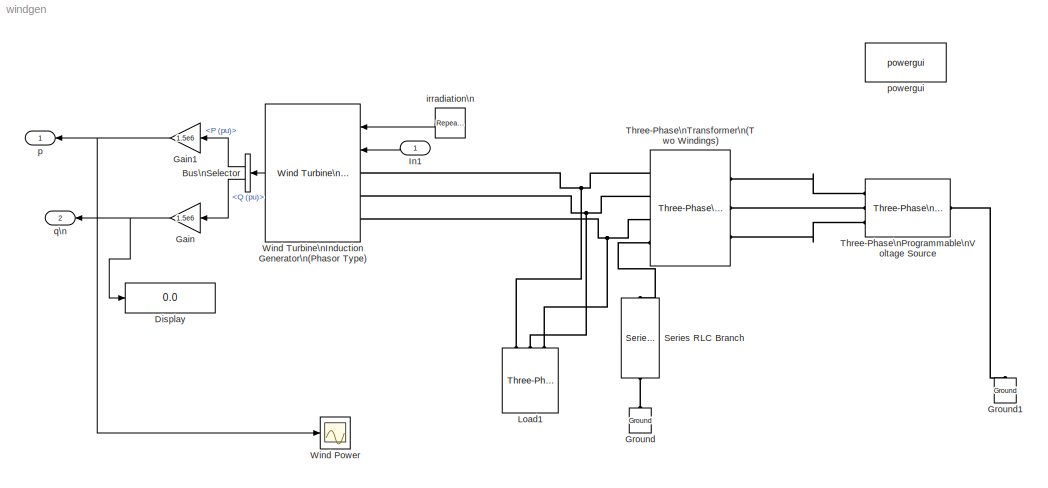
MODEL windgen
KIND model
BLOCK [BusSelector] Bus\nSelector
  OutputAsBus = off
  OutputSignals = P (pu),Q (pu)
  Ports = [1, 2]
  SID = 15
BLOCK [Display] Display
  Decimation = 1
  Ports = [1]
  SID = 31
BLOCK [Gain] Gain
  Gain = 1.5e6
  OutDataTypeStr = Inherit: Inherit via internal rule
  ParamDataTypeStr = Inherit: Inherit via internal rule
  SID = 16
  SaturateOnIntegerOverflow = off
BLOCK [Gain] Gain1
  Gain = 1.5e6
  OutDataTypeStr = Inherit: Inherit via internal rule
  ParamDataTypeStr = Inherit: Inherit via internal rule
  SID = 17
  SaturateOnIntegerOverflow = off
BLOCK [Reference] Ground  REF=powerlib/Elements/Ground
  LConnTagsString = a
  Ports = [0, 0, 0, 0, 0, 1]
  SID = 14
  SourceBlock = powerlib/Elements/Ground
  SourceProductBaseCode = PS
  SourceProductName = Simscape Electrical
  SourceType = Ground
BLOCK [Reference] Ground1  REF=powerlib/Elements/Ground
  LConnTagsString = a
  Ports = [0, 0, 0, 0, 0, 1]
  SID = 29
  SourceBlock = powerlib/Elements/Ground
  SourceProductBaseCode = PS
  SourceProductName = Simscape Electrical
  SourceType = Ground
BLOCK [Inport] In1
  IconDisplay = Port number
  SID = 33
BLOCK [Reference] Load1  REF=powerlib/Elements/Three-Phase\nSeries RLC Load
  ActivePower = 0
  AttributesFormatString = \\n
  CapacitivePower = 400e3
  Configuration = Delta
  InductivePower = 0
  LConnTagsString = A|B|C
  LoadType = constant Z
  Measurements = None
  NominalFrequency = 50
  NominalVoltage = 575
  Pabc = [10e3 9e3 11e3]
  Pabcp = [10e3 9e3 11e3]
  Ports = [0, 0, 0, 0, 0, 3]
  QCabc = [100 90 110]
  QCabcp = [100 90 110]
  QLabc = [100 90 110]
  QLabcp = [100 90 110]
  SID = 1
  SourceBlock = powerlib/Elements/Three-Phase\nSeries RLC Load
  SourceProductBaseCode = PS
  SourceProductName = Simscape Electrical
  SourceType = Three-Phase Series RLC Load
  UnbalancedPower = off
  Vabc = [1e3 1e3 1e3]
  Vabcp = [1e3 1e3 1e3]
BLOCK [Reference] Series RLC Branch  REF=powerlib/Elements/Series RLC Branch
  BranchType = R
  Capacitance = 1e-6
  Inductance = 1e-3
  InitialCurrent = 0
  InitialVoltage = 0
  LConnTagsString = __new0
  Measurements = None
  Ports = [0, 0, 0, 0, 0, 1, 1]
  RConnTagsString = __new0
  Resistance = 66
  SID = 13
  SetiL0 = off
  Setx0 = off
  SourceBlock = powerlib/Elements/Series RLC Branch
  SourceProductBaseCode = PS
  SourceProductName = Simscape Electrical
  SourceType = Series RLC Branch
BLOCK [Reference] Three-Phase\nProgrammable\nVoltage Source  REF=powerlib/Electrical\nSources/Three-Phase\nProgrammable\nVoltage Source
  Amplitudes = [1 0.8 1.2 1.0]
  BusType = swing
  HarmonicA = [3 0.2 -25 0]
  HarmonicB = [2 0.15 35 2]
  HarmonicGeneration = off
  Ports = [0, 0, 0, 0, 0, 1, 3]
  PositiveSequence = [25e3  0 50]
  Pref = 0
  Qmax = inf
  Qmin = -inf
  Qref = 0
  SID = 27
  SourceBlock = powerlib/Electrical\nSources/Three-Phase\nProgrammable\nVoltage Source
  SourceProductBaseCode = PS
  SourceProductName = Simscape Electrical
  SourceType = Three-Phase Programmable Voltage Source
  TimeValues = [0 0.1 0.15 0.2]
  Timing = [0.05  3]
  VariationEntity = None
  VariationFrequency = 2
  VariationMagnitude = 0.3
  VariationPhaseA = off
  VariationRate = 10
  VariationStep = 0.5
  VariationTiming = [1 2]
  VariationType = Table of time-amplitude pairs
  VariationTypeAlt = Step
BLOCK [Reference] Three-Phase\nTransformer\n(Two Windings)  REF=powerlib/Elements/Three-Phase\nTransformer\n(Two Windings)
  BreakLoop = off
  CoreType = Three single-phase transformers
  DataFile = 'hysteresis'
  DataType = off
  DiscreteSolver = Trapezoidal iterative
  Hysteresis = off
  InitialFluxes = [ 0.8 , -0.8 , 0.7 ]
  L0 = 0.5
  Lm = inf
  Measurements = None
  NominalPower = [ 1.5e6 , 50]
  Ports = [0, 0, 0, 0, 0, 3, 4]
  Rm = 500
  SID = 28
  Saturation = [ 0,0 ; 0.0024,1.2 ; 1.0,1.52 ]
  SetInitialFlux = off
  SetSaturation = off
  SourceBlock = powerlib/Elements/Three-Phase\nTransformer\n(Two Windings)
  SourceProductBaseCode = PS
  SourceProductName = Simscape Electrical
  SourceType = Three-Phase Transformer (Two Windings)
  TransfoNumber = 1
  UNITS = pu
  Winding1 = [ 25e3 , 0.025/30 , 0.025 ]
  Winding1Connection = Yg
  Winding2 = [ 575 , 0.025/30 , 0.025]
  Winding2Connection = Yn
BLOCK [Scope] Wind Power
  Floating = off
  NumInputPorts = 1
  Ports = [1]
  SID = 32
  ScopeSpecificationString = Simulink.scopes.TimeScopeBlockCfg('CurrentConfiguration', extmgr.ConfigurationSet(extmgr.Configuration('Core','General UI',true),extmgr.Configuration('Core','Source UI',true),extmgr.Configuration('Sources','WiredSimulink',true,'DataLoggingVariableName','ScopeData1'),extmgr.Configuration('Visuals','Time Domain',true,'SerializedDisplays',{struct('MinYLimReal','-1165649.01838','MaxYLimReal','2213298....<+1517ch>
BLOCK [Reference] Wind Turbine\nInduction Generator\n(Phasor Type)  REF=re_lib/Wind Generation/Wind Turbine\nInduction Generator\n(Phasor Type)
  ExternalTm = off
  K_pitch_gain = [5 25]
  Lm = 6.77
  P_wind_base = 1
  Pmec = 1.5e6
  Ports = [2, 1, 0, 0, 0, 3]
  SID = 26
  SourceBlock = re_lib/Wind Generation/Wind Turbine\nInduction Generator\n(Phasor Type)
  SourceProductBaseCode = PS
  SourceProductName = Simscape Electrical
  SourceType = Wind Turbine Induction Generator (Phasor Type)
  init = [ -0.01,0,   0,0,0,   0,0,0 ]
  mec = [5.04, 0.01, 3]
  nom = [1.5e6, 575, 50]
  pitch_angle = 0
  pitch_max = 45
  pitch_rate = 2
  rot = [ 0.004377, 0.1791]
  speed_nom = 1
  sta = [ 0.004843, 0.1248]
  wind_base = 12
BLOCK [Reference] irradiation\n  REF=simulink/Sources/Repeating\nSequence\nInterpolated
  LockScale = off
  LookUpMeth = Interpolation-Use End Values
  OutDataType = fixdt(0,8)
  OutDataTypeStr = double
  OutMax = []
  OutMin = []
  OutScaling = 2^-10
  OutValues = wSpeed
  OutputDataTypeScalingMode = double
  Ports = [0, 1]
  SID = 36
  SourceBlock = simulink/Sources/Repeating\nSequence\nInterpolated
  SourceProductBaseCode = SL
  SourceProductName = Simulink
  SourceType = Repeating Sequence Interpolated
  TimeValues = timeStamp
  tsamp = 0.1
BLOCK [Outport] p
  IconDisplay = Port number
  SID = 18
BLOCK [Reference] powergui  REF=powerlib/powergui
  AutomaticDiscreteSolvers = off
  ContinueOnMaxIteration = off
  CurrentSourceSwitches = off
  DisableRonSwitches = off
  DisableSnubberDevices = off
  DisableVfSwitches = off
  DisplayEquations = off
  DisplayStyle = 1
  EnableUseOfTLC = off
  ErrMax = 1e-4
  ExternalGateDelay = off
  Frange = [0:2:500]
  FreqAxis = off
  FunctionMessages = off
  HookPort = off
  Interpol = off
  Iterations = 50
  MaxFrequency = 1000
  NonlinearTolerance = 0
  Pbase = 100e6
  Ports = []
  Priority = 1
  ResistiveCurrentMeasurement = off
  RestoreLinks = warning
  RmsSteady = 1
  SID = 24
  SPID = on
  SampleTime = 50e-6
  ShowGrid = off
  SolverType = Tustin/Backward Euler (TBE)
  SourceBlock = powerlib/powergui
  SourceProductBaseCode = PS
  SourceProductName = Simscape Electrical
  SourceType = PSB option menu block
  StartTime = 0.0
  SwTol = 0
  Ts = 100
  UnitsV = kV
  UnitsW = MW
  Xlog = on
  Ylog = off
  ZoomFFT = off
  buscounter = 0
  cycles = 1
  display = off
  echomessages = off
  frequency = 50
  frequencyindice = 50
  frequencyindicesteady = 1
  fundamental = 60
  methode = off
  nMaxIteration = 15
  save = off
  structure = 0
  variable = ZData
  x0status = blocks
BLOCK [Outport] q\n
  IconDisplay = Port number
  Port = 2
  SID = 19
LINE Bus\nSelector:1 -> Gain1:1
LINE Bus\nSelector:2 -> Gain:1
NET Gain1:1 -> Wind Power:1, p:1
NET Gain:1 -> Display:1, q\n:1
LINE In1:1 -> Wind Turbine\nInduction Generator\n(Phasor Type):2
LINE Wind Turbine\nInduction Generator\n(Phasor Type):1 -> Bus\nSelector:1
LINE irradiation\n:1 -> Wind Turbine\nInduction Generator\n(Phasor Type):1
PLINE Ground1:LConn1 -- Three-Phase\nProgrammable\nVoltage Source:LConn1
PLINE Ground:LConn1 -- Series RLC Branch:RConn1
PNET net1: Load1:LConn1 -- Three-Phase\nTransformer\n(Two Windings):RConn1 -- Wind Turbine\nInduction Generator\n(Phasor Type):LConn1
PNET net2: Load1:LConn2 -- Three-Phase\nTransformer\n(Two Windings):RConn2 -- Wind Turbine\nInduction Generator\n(Phasor Type):LConn2
PNET net3: Load1:LConn3 -- Three-Phase\nTransformer\n(Two Windings):RConn3 -- Wind Turbine\nInduction Generator\n(Phasor Type):LConn3
PLINE Series RLC Branch:LConn1 -- Three-Phase\nTransformer\n(Two Windings):RConn4
PLINE Three-Phase\nProgrammable\nVoltage Source:RConn1 -- Three-Phase\nTransformer\n(Two Windings):LConn1
PLINE Three-Phase\nProgrammable\nVoltage Source:RConn2 -- Three-Phase\nTransformer\n(Two Windings):LConn2
PLINE Three-Phase\nProgrammable\nVoltage Source:RConn3 -- Three-Phase\nTransformer\n(Two Windings):LConn3
note: NET lines group one-source signal fan-out (src -> all destinations, sorted); 1:1 wires keep LINE; PNET lines group multi-terminal physical nets as a canonical sorted terminal list (undirected conserving connections); 2-terminal nets keep the pairwise PLINE form
